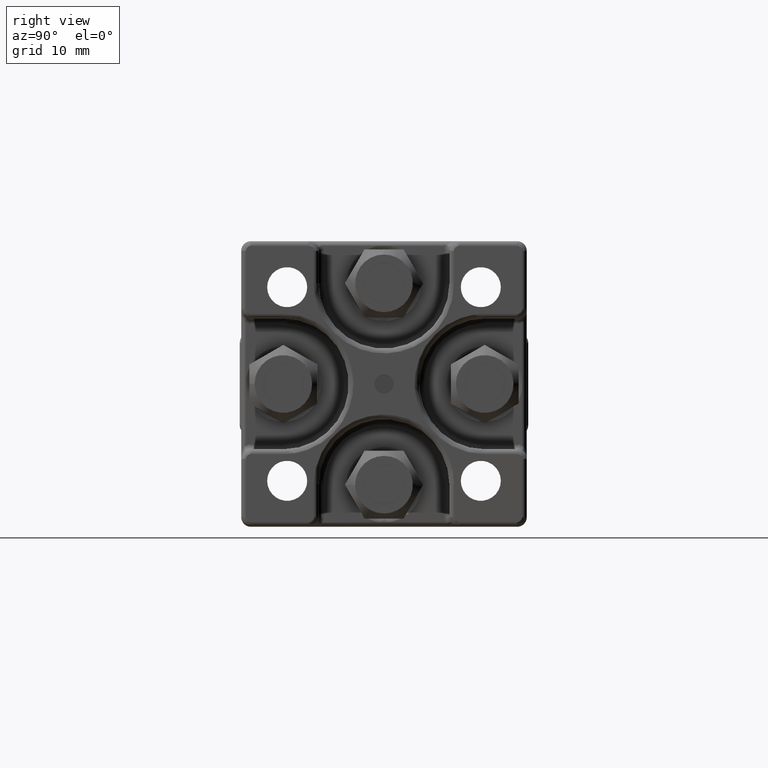
[diagram: clean part render]
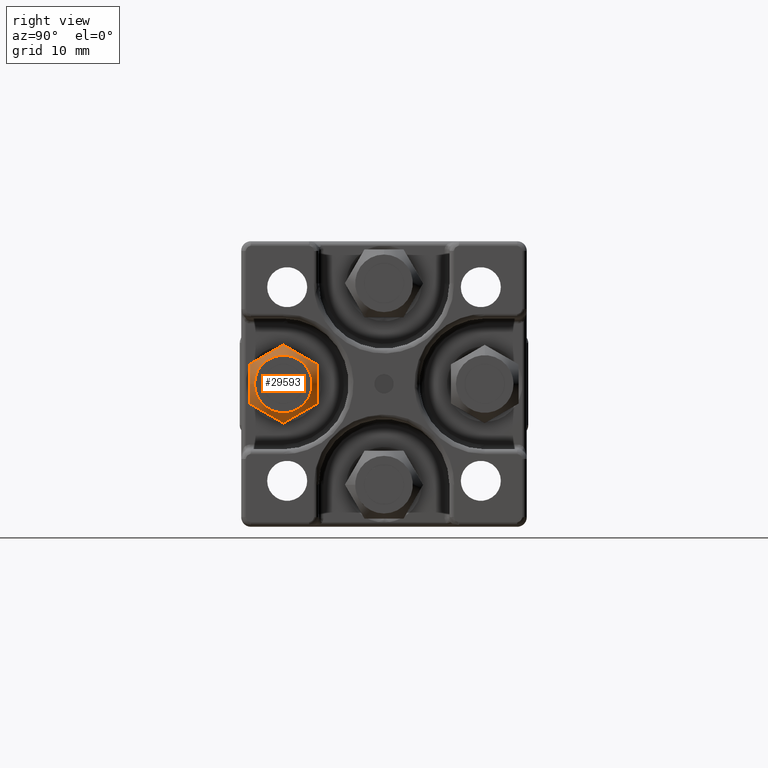
[diagram: same view with one face highlighted and labeled with its STEP entity id]
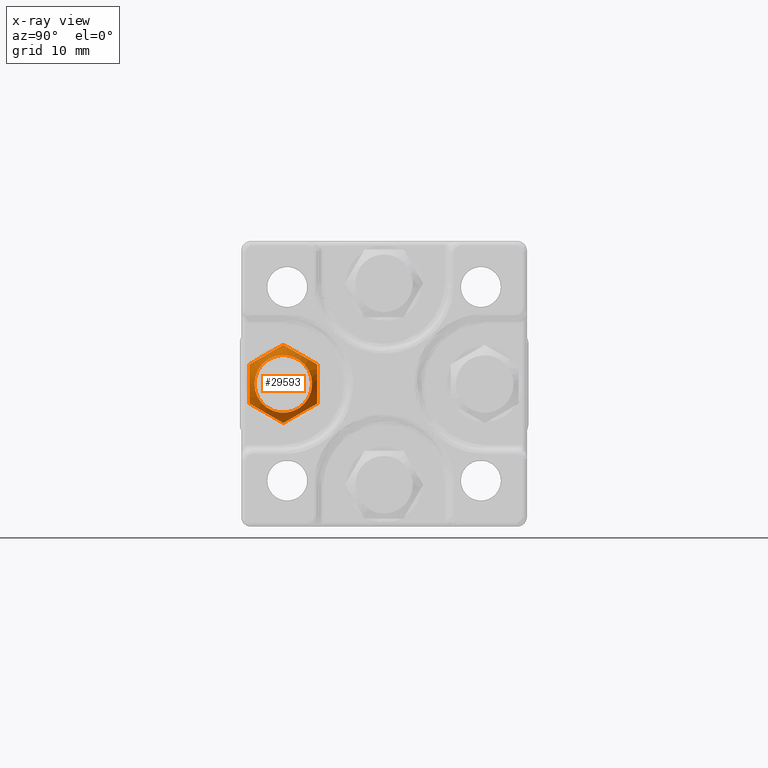
[diagram: x-ray of the same camera — body ghosted, the highlighted face saturated]
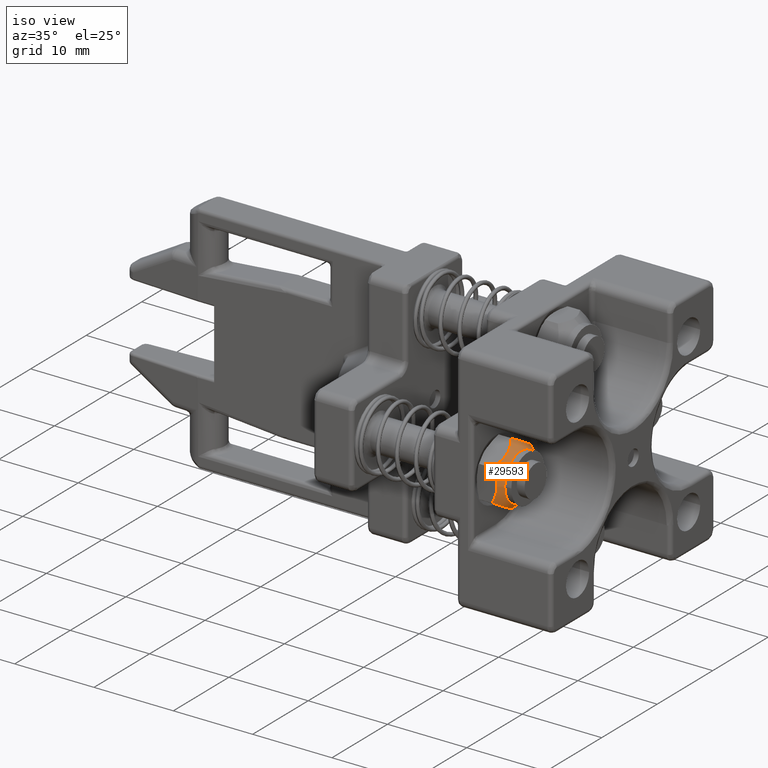
[diagram: same view with one face highlighted and labeled with its STEP entity id]
A machine part, right view. The second image highlights one B-rep face of the part: STEP entity #29593.
The next image is the same camera in x-ray: the body ghosted, the highlighted face saturated — about 0% of this face is hidden behind the body in this view.
A second angle (iso view) of the same face is appended — the face is thin or edge-on in the first view.
In plain terms, the highlighted conical surface has half-angle 40 deg.
Its self-contained STEP definition (entity closure, byte-faithful):
#202 = CARTESIAN_POINT ( 'NONE',  ( 0.9929297957910275800, -0.4309862919183924900, -0.1466776096059449800 ) ) ;
#873 = B_SPLINE_CURVE_WITH_KNOTS ( 'NONE', 3,
 ( #19011, #22118, #25238, #6638, #28362, #21725, #18760, #19135, #3111, #24728, #34193, #31205 ),
 .UNSPECIFIED., .F., .F.,
 ( 4, 2, 2, 2, 2, 4 ),
 ( 0.0000000000000000000, 0.001063028744299388800, 0.001594543116449086800, 0.002126057488598784900, 0.003189086232898181500, 0.004252114977197577600 ),
 .UNSPECIFIED. ) ;
#1580 = CARTESIAN_POINT ( 'NONE',  ( 0.9865683963209882500, -0.2716535395483595200, -0.06740985573846156000 ) ) ;
#1668 = CARTESIAN_POINT ( 'NONE',  ( 1.004722729804757200, -0.4846118027898302400, -0.1157169064688894100 ) ) ;
#1874 = CARTESIAN_POINT ( 'NONE',  ( 0.9865683945066829900, -0.4199678016211389500, 0.1530391392665034500 ) ) ;
#2242 = DIRECTION ( 'NONE',  ( 1.000000000000000000, 1.282514000000000100E-016, 1.024591000000000000E-029 ) ) ;
#2582 = EDGE_CURVE ( 'NONE', #8136, #8136, #26268, .T. ) ;
#2880 = ORIENTED_EDGE ( 'NONE', *, *, #36999, .T. ) ;
#3111 = CARTESIAN_POINT ( 'NONE',  ( 1.002053676752620000, -0.3648570721532910000, 0.1333672253824274000 ) ) ;
#3257 = CARTESIAN_POINT ( 'NONE',  ( 0.9790304847382054200, -0.4094488151430144000, 1.290651971916553500E-009 ) ) ;
#3791 = VERTEX_POINT ( 'NONE', #34703 ) ;
#3886 = CARTESIAN_POINT ( 'NONE',  ( 1.002053676752672700, -0.4540405581329517400, -0.1333672228010000000 ) ) ;
#3996 = CARTESIAN_POINT ( 'NONE',  ( 0.9996636491066754900, -0.3709340631560657500, -0.1368757751924385400 ) ) ;
#4114 = CARTESIAN_POINT ( 'NONE',  ( 0.9793307093808875100, -0.5472440896307095800, 0.07955614138264970000 ) ) ;
#4545 = CARTESIAN_POINT ( 'NONE',  ( 0.9928320417913483200, -0.3880799304154376500, -0.1467749462701264700 ) ) ;
#4692 = EDGE_LOOP ( 'NONE', ( #20934, #20846, #33733, #33222, #28649, #2880 ) ) ;
#5961 = CONICAL_SURFACE ( 'NONE', #37496, 0.1593641966603291400, 0.6981316999992954700 ) ;
#6638 = CARTESIAN_POINT ( 'NONE',  ( 0.9996636488474401900, -0.3101682907979577100, 0.1017926427452730800 ) ) ;
#7143 = CARTESIAN_POINT ( 'NONE',  ( 1.004759971322391400, -0.3285509034298611500, -0.1124058465154073900 ) ) ;
#7392 = CARTESIAN_POINT ( 'NONE',  ( 0.9865683945066444600, -0.5472440896424591900, 0.06740986076653521200 ) ) ;
#7738 = CARTESIAN_POINT ( 'NONE',  ( 0.9793307093809053800, -0.4094488140401326100, 0.1591122795644296900 ) ) ;
#8136 = VERTEX_POINT ( 'NONE', #30382 ) ;
#8859 = VERTEX_POINT ( 'NONE', #13259 ) ;
#8998 = DIRECTION ( 'NONE',  ( -8.571084506160936800E-016, -1.000000000000000000, 0.0000000000000000000 ) ) ;
#10108 = EDGE_CURVE ( 'NONE', #8859, #15274, #873, .T. ) ;
#10247 = CARTESIAN_POINT ( 'NONE',  ( 1.002053676281264600, -0.3162452807918359500, -0.1053011919727975000 ) ) ;
#10364 = CARTESIAN_POINT ( 'NONE',  ( 1.001506939157269700, -0.5472440907335655000, 0.02831347173051414900 ) ) ;
#10850 = CARTESIAN_POINT ( 'NONE',  ( 1.004055528574461200, -0.4659382816351628200, 0.1264980715155586100 ) ) ;
#12829 = CARTESIAN_POINT ( 'NONE',  ( 0.9793307093810561500, -0.4094488162461148400, -0.1591122769829994000 ) ) ;
#12928 = B_SPLINE_CURVE_WITH_KNOTS ( 'NONE', 3,
 ( #7738, #1874, #29439, #14392, #29300, #10850, #32536, #29575, #39613, #18206, #39341, #29988 ),
 .UNSPECIFIED., .F., .F.,
 ( 4, 2, 2, 2, 2, 4 ),
 ( 0.0000000000000000000, 0.001063028744300212500, 0.001594543116450320700, 0.002126057488600429000, 0.003189086232900640400, 0.004252114977200851900 ),
 .UNSPECIFIED. ) ;
#12988 = EDGE_CURVE ( 'NONE', #3791, #23010, #13918, .T. ) ;
#13259 = CARTESIAN_POINT ( 'NONE',  ( 0.9793307093808878400, -0.2716535395524632400, 0.07955613947244694100 ) ) ;
#13502 = CARTESIAN_POINT ( 'NONE',  ( 0.9996636488472937500, -0.5472440907335653900, 0.03508313674768302100 ) ) ;
#13910 = CARTESIAN_POINT ( 'NONE',  ( 1.004055528574366600, -0.5472440907335656100, 0.01432772337539665200 ) ) ;
#13918 = B_SPLINE_CURVE_WITH_KNOTS ( 'NONE', 3,
 ( #22596, #16518, #4545, #3996, #32216, #22868, #25726, #7143, #10247, #16918, #26149, #38597 ),
 .UNSPECIFIED., .F., .F.,
 ( 4, 2, 2, 2, 2, 4 ),
 ( 0.0000000000000000000, 0.001063028763726867300, 0.001594543145590302700, 0.002126057527453738400, 0.003189086291180604600, 0.004252115054907470800 ),
 .UNSPECIFIED. ) ;
#14109 = CARTESIAN_POINT ( 'NONE',  ( 1.004722729909935300, -0.2716535395524632400, -0.007234599740207802600 ) ) ;
#14242 = CARTESIAN_POINT ( 'NONE',  ( 0.9928320426563661500, -0.2716535395524632400, -0.05488147342667791500 ) ) ;
#14375 = CARTESIAN_POINT ( 'NONE',  ( 1.001506939673885200, -0.2716535395524632400, -0.02831346697717483700 ) ) ;
#14392 = CARTESIAN_POINT ( 'NONE',  ( 0.9996636488474315300, -0.4479635663884839500, 0.1368757782018355000 ) ) ;
#15260 = CARTESIAN_POINT ( 'NONE',  ( 0.9793307093813539100, -0.5472440907335655000, -0.07955613689036102100 ) ) ;
#15274 = VERTEX_POINT ( 'NONE', #33979 ) ;
#16363 = CARTESIAN_POINT ( 'NONE',  ( 0.9793307093813539100, -0.5472440907335655000, -0.07955613689036102100 ) ) ;
#16498 = CARTESIAN_POINT ( 'NONE',  ( 0.9929297957914438000, -0.5472440907335656100, -0.05468680213580855200 ) ) ;
#16518 = CARTESIAN_POINT ( 'NONE',  ( 0.9865683946386004700, -0.3989298284731711600, -0.1530391365742823900 ) ) ;
#16918 = CARTESIAN_POINT ( 'NONE',  ( 0.9929297947619173400, -0.2931910142868880400, -0.09199080500019638000 ) ) ;
#17224 = B_SPLINE_CURVE_WITH_KNOTS ( 'NONE', 3,
 ( #4114, #7392, #22849, #13502, #10364, #13910, #22988, #19591, #29095, #16498, #29366, #16363 ),
 .UNSPECIFIED., .F., .F.,
 ( 4, 2, 2, 2, 2, 4 ),
 ( 0.0000000000000000000, 0.001063028744288440700, 0.001594543116432661200, 0.002126057488576881000, 0.003189086232865321500, 0.004252114977153761100 ),
 .UNSPECIFIED. ) ;
#18206 = CARTESIAN_POINT ( 'NONE',  ( 0.9929297957908459500, -0.5257066139585572200, 0.09199080875963185100 ) ) ;
#18760 = CARTESIAN_POINT ( 'NONE',  ( 1.004722729804762700, -0.3342858274962348700, 0.1157169090502141300 ) ) ;
#19011 = CARTESIAN_POINT ( 'NONE',  ( 0.9793307093808878400, -0.2716535395524632400, 0.07955613947244694100 ) ) ;
#19135 = CARTESIAN_POINT ( 'NONE',  ( 1.004759971506644900, -0.3525514497115110900, 0.1262625709531198800 ) ) ;
#19591 = CARTESIAN_POINT ( 'NONE',  ( 1.004759971506748800, -0.5472440907335655000, -0.01385671966748134100 ) ) ;
#20196 = CARTESIAN_POINT ( 'NONE',  ( 1.004055528812069200, -0.2716535395524633000, -0.01432771882670125600 ) ) ;
#20329 = CARTESIAN_POINT ( 'NONE',  ( 0.9793307085466521600, -0.2716535394428717400, -0.07955613810133882500 ) ) ;
#20468 = CARTESIAN_POINT ( 'NONE',  ( 0.9793307093808878400, -0.2716535395524632400, 0.07955613947244694100 ) ) ;
#20613 = CARTESIAN_POINT ( 'NONE',  ( 1.004759971305182200, -0.2716535395524632400, 0.01385672364908658300 ) ) ;
#20846 = ORIENTED_EDGE ( 'NONE', *, *, #12988, .T. ) ;
#20872 = CARTESIAN_POINT ( 'NONE',  ( 1.029368026160473000, -0.4094488151430144000, 1.290651968503937100E-009 ) ) ;
#20934 = ORIENTED_EDGE ( 'NONE', *, *, #24431, .T. ) ;
#20999 = DIRECTION ( 'NONE',  ( 0.0000000000000000000, -1.000000000000000000, 0.0000000000000000000 ) ) ;
#21224 = CARTESIAN_POINT ( 'NONE',  ( 1.004055528574460800, -0.4907546242414012000, -0.1121703468502410800 ) ) ;
#21657 = ORIENTED_EDGE ( 'NONE', *, *, #2582, .F. ) ;
#21725 = CARTESIAN_POINT ( 'NONE',  ( 1.004055528574462600, -0.3281430060446224900, 0.1121703494315419400 ) ) ;
#22003 = CARTESIAN_POINT ( 'NONE',  ( 0.9793307093808875100, -0.5472440896307095800, 0.07955614138264970000 ) ) ;
#22118 = CARTESIAN_POINT ( 'NONE',  ( 0.9865683945067186300, -0.2821725271217463400, 0.08562927979074198800 ) ) ;
#22596 = CARTESIAN_POINT ( 'NONE',  ( 0.9793307093810561500, -0.4094488162461148400, -0.1591122769829994000 ) ) ;
#22849 = CARTESIAN_POINT ( 'NONE',  ( 0.9928320415612106300, -0.5472440907335655000, 0.05488147850349173900 ) ) ;
#22868 = CARTESIAN_POINT ( 'NONE',  ( 1.004055528744608900, -0.3529593475233556200, -0.1264980682832863000 ) ) ;
#22988 = CARTESIAN_POINT ( 'NONE',  ( 1.004722729804708100, -0.5472440907335653900, 0.007234604138115877600 ) ) ;
#23010 = VERTEX_POINT ( 'NONE', #20329 ) ;
#23101 = VERTEX_POINT ( 'NONE', #24926 ) ;
#24431 = EDGE_CURVE ( 'NONE', #23101, #3791, #25941, .T. ) ;
#24728 = CARTESIAN_POINT ( 'NONE',  ( 0.9929297957908633800, -0.3879113383679703700, 0.1466776121874418000 ) ) ;
#24911 = CARTESIAN_POINT ( 'NONE',  ( 0.9865977862977020100, -0.4200105185998835300, -0.1530144752859505200 ) ) ;
#24926 = CARTESIAN_POINT ( 'NONE',  ( 0.9793307093813539100, -0.5472440907335655000, -0.07955613689036102100 ) ) ;
#25115 = EDGE_CURVE ( 'NONE', #15274, #29473, #12928, .T. ) ;
#25238 = CARTESIAN_POINT ( 'NONE',  ( 0.9928320415613398600, -0.2930224238844260600, 0.09189347186725611800 ) ) ;
#25726 = CARTESIAN_POINT ( 'NONE',  ( 1.004722729900971300, -0.3468165259742264600, -0.1229515086083127800 ) ) ;
#25941 = B_SPLINE_CURVE_WITH_KNOTS ( 'NONE', 3,
 ( #15260, #27872, #29591, #37041, #38708, #21224, #1668, #38908, #3886, #202, #24911, #12829 ),
 .UNSPECIFIED., .F., .F.,
 ( 4, 2, 2, 2, 2, 4 ),
 ( 0.0000000000000000000, 0.001063028744292441400, 0.001594543116438658500, 0.002126057488584875500, 0.003189086232877313200, 0.004252114977169750900 ),
 .UNSPECIFIED. ) ;
#26149 = CARTESIAN_POINT ( 'NONE',  ( 0.9865977849099392100, -0.2822152407147757200, -0.08565393917377296700 ) ) ;
#26268 = CIRCLE ( 'NONE', #39853, 0.1171259842519685200 ) ;
#26442 = CARTESIAN_POINT ( 'NONE',  ( 0.9996636495099058300, -0.2716535395524631900, -0.03508313190694255200 ) ) ;
#26582 = CARTESIAN_POINT ( 'NONE',  ( 0.9793307085466521600, -0.2716535394428717400, -0.07955613810133882500 ) ) ;
#27872 = CARTESIAN_POINT ( 'NONE',  ( 0.9865683945065991700, -0.5367251031635598100, -0.08562927720904507700 ) ) ;
#28121 = DIRECTION ( 'NONE',  ( -1.000000000000000000, 7.422776920347700900E-016, -4.285542253030009900E-016 ) ) ;
#28362 = CARTESIAN_POINT ( 'NONE',  ( 1.001506939157410100, -0.3160309926780056100, 0.1051774752538973100 ) ) ;
#28547 = EDGE_CURVE ( 'NONE', #23010, #8859, #29596, .T. ) ;
#28649 = ORIENTED_EDGE ( 'NONE', *, *, #25115, .T. ) ;
#29095 = CARTESIAN_POINT ( 'NONE',  ( 1.002053676752886000, -0.5472440907335656100, -0.02806602852596868900 ) ) ;
#29224 = FACE_BOUND ( 'NONE', #34149, .T. ) ;
#29300 = CARTESIAN_POINT ( 'NONE',  ( 1.001506939157404700, -0.4538262682685360600, 0.1334909456932088200 ) ) ;
#29366 = CARTESIAN_POINT ( 'NONE',  ( 0.9865977862982170400, -0.5472440907335652800, -0.06736053349578138800 ) ) ;
#29439 = CARTESIAN_POINT ( 'NONE',  ( 0.9928320415613221000, -0.4308176994749402500, 0.1467749490798593800 ) ) ;
#29473 = VERTEX_POINT ( 'NONE', #22003 ) ;
#29575 = CARTESIAN_POINT ( 'NONE',  ( 1.004759971506644900, -0.4903467253020710200, 0.1124058499939693400 ) ) ;
#29591 = CARTESIAN_POINT ( 'NONE',  ( 0.9928320415614387800, -0.5258752064013955100, -0.09189346928607213000 ) ) ;
#29593 = ADVANCED_FACE ( 'NONE', ( #29224, #36510 ), #5961, .T. ) ;
#29596 = B_SPLINE_CURVE_WITH_KNOTS ( 'NONE', 3,
 ( #26582, #1580, #14242, #26442, #14375, #20196, #14109, #20613, #29972, #33072, #39042, #20468 ),
 .UNSPECIFIED., .F., .F.,
 ( 4, 2, 2, 2, 2, 4 ),
 ( 0.0000000000000000000, 0.001063028725931881400, 0.001594543088897823900, 0.002126057451863766700, 0.003189086177795651700, 0.004252114903727536800 ),
 .UNSPECIFIED. ) ;
#29972 = CARTESIAN_POINT ( 'NONE',  ( 1.002053676461007300, -0.2716535395524632400, 0.02806603219560843300 ) ) ;
#29988 = CARTESIAN_POINT ( 'NONE',  ( 0.9793307093808875100, -0.5472440896307095800, 0.07955614138264970000 ) ) ;
#30382 = CARTESIAN_POINT ( 'NONE',  ( 1.029368026160473000, -0.5265747993949828600, 1.290651968503937100E-009 ) ) ;
#31205 = CARTESIAN_POINT ( 'NONE',  ( 0.9793307093809053800, -0.4094488140401326100, 0.1591122795644296900 ) ) ;
#32216 = CARTESIAN_POINT ( 'NONE',  ( 1.001506939406224600, -0.3650713611538860000, -0.1334909426133015200 ) ) ;
#32536 = CARTESIAN_POINT ( 'NONE',  ( 1.004722729804762300, -0.4720811030867799200, 0.1229515118968836800 ) ) ;
#33072 = CARTESIAN_POINT ( 'NONE',  ( 0.9929297955334257500, -0.2716535395524633000, 0.05468680523321112200 ) ) ;
#33222 = ORIENTED_EDGE ( 'NONE', *, *, #10108, .T. ) ;
#33733 = ORIENTED_EDGE ( 'NONE', *, *, #28547, .T. ) ;
#33979 = CARTESIAN_POINT ( 'NONE',  ( 0.9793307093809053800, -0.4094488140401326100, 0.1591122795644296900 ) ) ;
#34149 = EDGE_LOOP ( 'NONE', ( #21657 ) ) ;
#34193 = CARTESIAN_POINT ( 'NONE',  ( 0.9865977862974701900, -0.3988871116865318500, 0.1530144778674776000 ) ) ;
#34703 = CARTESIAN_POINT ( 'NONE',  ( 0.9793307093810561500, -0.4094488162461148400, -0.1591122769829994000 ) ) ;
#36510 = FACE_OUTER_BOUND ( 'NONE', #4692, .T. ) ;
#36999 = EDGE_CURVE ( 'NONE', #29473, #23101, #17224, .T. ) ;
#37041 = CARTESIAN_POINT ( 'NONE',  ( 0.9996636488474739400, -0.5087293394879657300, -0.1017926401640303100 ) ) ;
#37496 = AXIS2_PLACEMENT_3D ( 'NONE', #3257, #28121, #8998 ) ;
#38597 = CARTESIAN_POINT ( 'NONE',  ( 0.9793307085466521600, -0.2716535394428717400, -0.07955613810133882500 ) ) ;
#38708 = CARTESIAN_POINT ( 'NONE',  ( 1.001506939157427400, -0.5028666376079513600, -0.1051774726726350400 ) ) ;
#38908 = CARTESIAN_POINT ( 'NONE',  ( 1.004759971506654900, -0.4663461805746627100, -0.1262625683717323000 ) ) ;
#39042 = CARTESIAN_POINT ( 'NONE',  ( 0.9865977861532742000, -0.2716535395524631900, 0.06736053632050940900 ) ) ;
#39341 = CARTESIAN_POINT ( 'NONE',  ( 0.9865977862974439900, -0.5366823872771271400, 0.08565394307959126000 ) ) ;
#39613 = CARTESIAN_POINT ( 'NONE',  ( 1.002053676752615600, -0.5026523477438609200, 0.1053011955646560000 ) ) ;
#39853 = AXIS2_PLACEMENT_3D ( 'NONE', #20872, #2242, #20999 ) ;